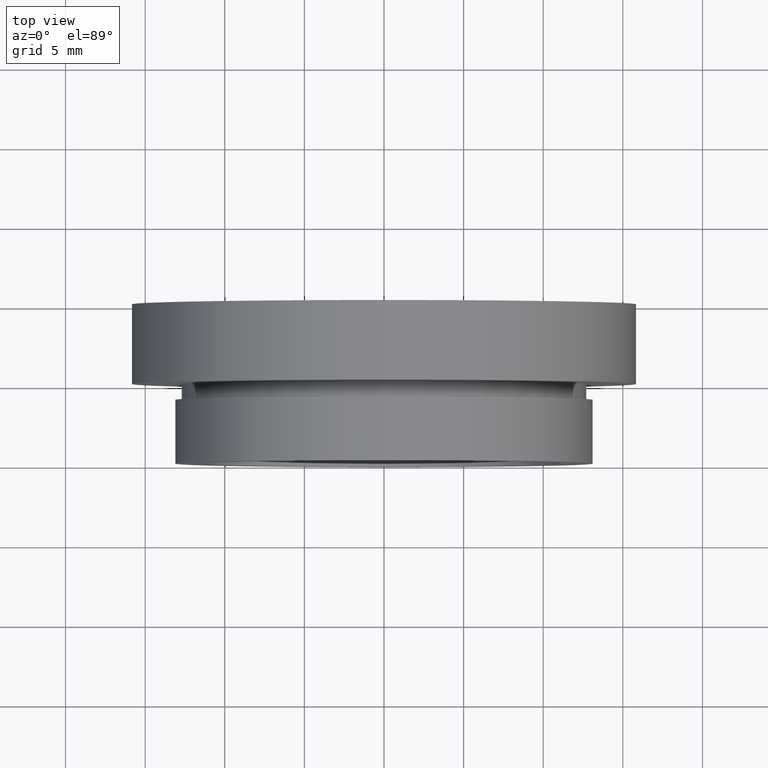
[diagram: clean part render]
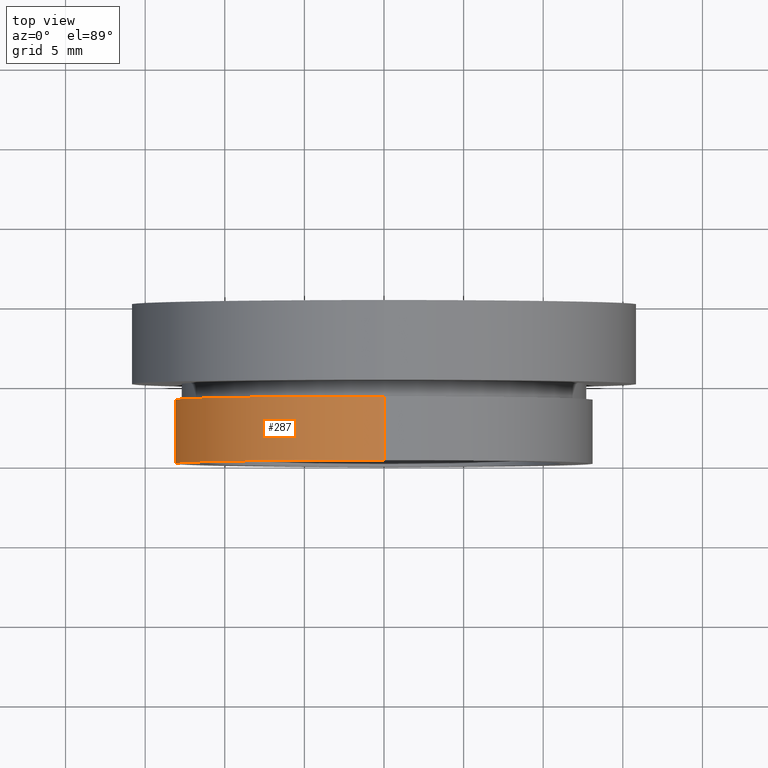
[diagram: same view with one face highlighted and labeled with its STEP entity id]
A machine part, top view. The second image highlights one B-rep face of the part: STEP entity #287.
In plain terms, the highlighted cylindrical surface (partial cylindrical patch) has radius 13.145 mm, axis along (-0, 1, -0).
Its self-contained STEP definition (entity closure, byte-faithful):
#22 = CARTESIAN_POINT ( 'NONE',  ( 1.609798217479195900E-015, 13.74468085106383300, -13.14500000000000000 ) ) ;
#49 = AXIS2_PLACEMENT_3D ( 'NONE', #498, #116, #248 ) ;
#62 = VECTOR ( 'NONE', #69, 1000.000000000000000 ) ;
#69 = DIRECTION ( 'NONE',  ( -0.0000000000000000000, 1.000000000000000000, -0.0000000000000000000 ) ) ;
#116 = DIRECTION ( 'NONE',  ( -0.0000000000000000000, 1.000000000000000000, -0.0000000000000000000 ) ) ;
#149 = VERTEX_POINT ( 'NONE', #360 ) ;
#154 = CARTESIAN_POINT ( 'NONE',  ( 1.609798217479195900E-015, 4.000000000000000000, -13.14500000000000000 ) ) ;
#169 = VERTEX_POINT ( 'NONE', #598 ) ;
#173 = VERTEX_POINT ( 'NONE', #313 ) ;
#201 = EDGE_CURVE ( 'NONE', #232, #149, #223, .T. ) ;
#223 = CIRCLE ( 'NONE', #618, 13.14500000000000000 ) ;
#224 = LINE ( 'NONE', #589, #62 ) ;
#232 = VERTEX_POINT ( 'NONE', #154 ) ;
#248 = DIRECTION ( 'NONE',  ( 0.0000000000000000000, 0.0000000000000000000, 1.000000000000000000 ) ) ;
#260 = CARTESIAN_POINT ( 'NONE',  ( 0.0000000000000000000, 13.74468085106383300, 0.0000000000000000000 ) ) ;
#262 = DIRECTION ( 'NONE',  ( 0.0000000000000000000, 0.0000000000000000000, 1.000000000000000000 ) ) ;
#265 = CIRCLE ( 'NONE', #49, 13.14500000000000000 ) ;
#266 = CYLINDRICAL_SURFACE ( 'NONE', #373, 13.14500000000000000 ) ;
#287 = ADVANCED_FACE ( 'NONE', ( #456 ), #266, .T. ) ;
#293 = VECTOR ( 'NONE', #521, 1000.000000000000000 ) ;
#313 = CARTESIAN_POINT ( 'NONE',  ( 1.609798217479195900E-015, 0.0000000000000000000, -13.14500000000000000 ) ) ;
#334 = ORIENTED_EDGE ( 'NONE', *, *, #395, .T. ) ;
#340 = EDGE_LOOP ( 'NONE', ( #424, #334, #579, #438 ) ) ;
#354 = LINE ( 'NONE', #22, #293 ) ;
#358 = DIRECTION ( 'NONE',  ( -0.0000000000000000000, 1.000000000000000000, -0.0000000000000000000 ) ) ;
#360 = CARTESIAN_POINT ( 'NONE',  ( 0.0000000000000000000, 4.000000000000000000, 13.14500000000000000 ) ) ;
#373 = AXIS2_PLACEMENT_3D ( 'NONE', #260, #358, #262 ) ;
#395 = EDGE_CURVE ( 'NONE', #173, #169, #265, .T. ) ;
#424 = ORIENTED_EDGE ( 'NONE', *, *, #577, .F. ) ;
#438 = ORIENTED_EDGE ( 'NONE', *, *, #201, .F. ) ;
#456 = FACE_OUTER_BOUND ( 'NONE', #340, .T. ) ;
#462 = DIRECTION ( 'NONE',  ( 0.0000000000000000000, 0.0000000000000000000, 1.000000000000000000 ) ) ;
#498 = CARTESIAN_POINT ( 'NONE',  ( 0.0000000000000000000, 0.0000000000000000000, 0.0000000000000000000 ) ) ;
#521 = DIRECTION ( 'NONE',  ( -0.0000000000000000000, 1.000000000000000000, -0.0000000000000000000 ) ) ;
#527 = CARTESIAN_POINT ( 'NONE',  ( 0.0000000000000000000, 4.000000000000000000, 0.0000000000000000000 ) ) ;
#535 = DIRECTION ( 'NONE',  ( -0.0000000000000000000, 1.000000000000000000, -0.0000000000000000000 ) ) ;
#555 = EDGE_CURVE ( 'NONE', #169, #149, #224, .T. ) ;
#577 = EDGE_CURVE ( 'NONE', #173, #232, #354, .T. ) ;
#579 = ORIENTED_EDGE ( 'NONE', *, *, #555, .T. ) ;
#589 = CARTESIAN_POINT ( 'NONE',  ( 0.0000000000000000000, 13.74468085106383300, 13.14500000000000000 ) ) ;
#598 = CARTESIAN_POINT ( 'NONE',  ( 0.0000000000000000000, 0.0000000000000000000, 13.14500000000000000 ) ) ;
#618 = AXIS2_PLACEMENT_3D ( 'NONE', #527, #535, #462 ) ;